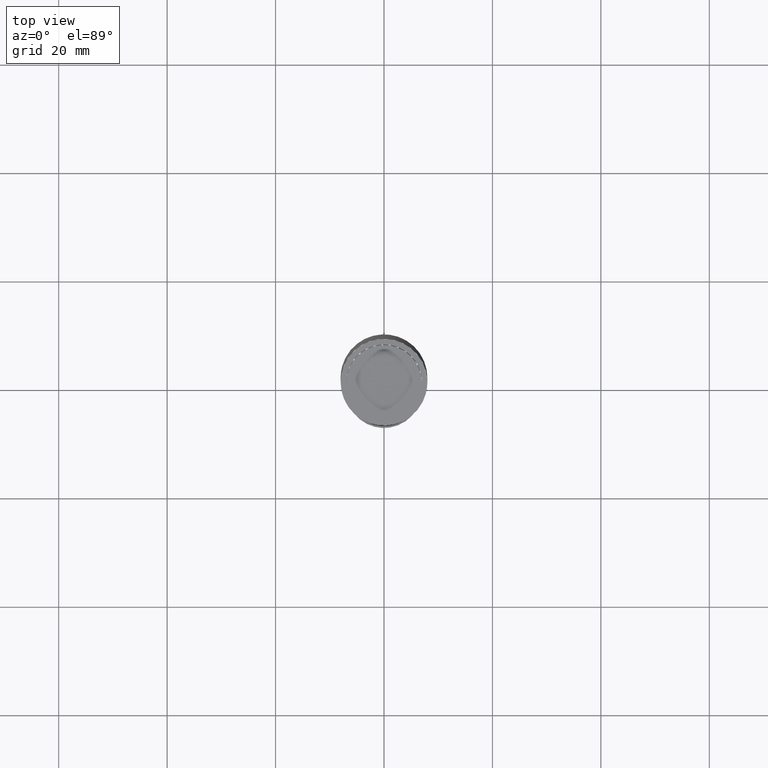
[diagram: clean part render]
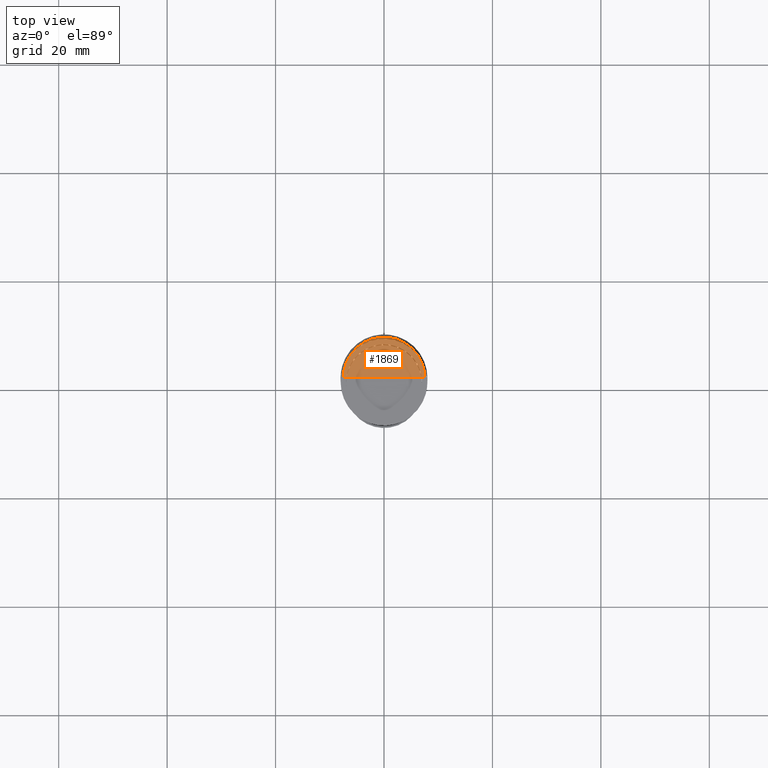
[diagram: same view with one face highlighted and labeled with its STEP entity id]
A machine part, top view. The second image highlights one B-rep face of the part: STEP entity #1869.
In plain terms, the highlighted face is a freeform B-spline surface patch.
Its self-contained STEP definition (entity closure, byte-faithful):
#1604=CARTESIAN_POINT('',(7.5,0.0,48.0));
#1605=CARTESIAN_POINT('',(7.5,7.5,48.0));
#1606=CARTESIAN_POINT('',(0.0,7.5,48.0));
#1607=CARTESIAN_POINT('',(-7.5,7.5,48.0));
#1608=CARTESIAN_POINT('',(-7.5,0.0,48.0));
#1609=CARTESIAN_POINT('',(0.0,0.0,48.0));
#1854=(
BOUNDED_SURFACE()
B_SPLINE_SURFACE(1,2,(
(#1604,#1605,#1606,#1607,#1608),
(#1609,#1609,#1609,#1609,#1609)
), .UNSPECIFIED.,.F.,.F.,.F.)
B_SPLINE_SURFACE_WITH_KNOTS((2,2),(3,2,3),(
0.0,1.0),(
0.0,0.5,1.0), .UNSPECIFIED.)
GEOMETRIC_REPRESENTATION_ITEM()
RATIONAL_B_SPLINE_SURFACE(((1.0,0.707106781187,1.0,0.707106781187,1.0),
(1.0,0.707106781187,1.0,0.707106781187,1.0)
))
REPRESENTATION_ITEM('')
SURFACE()
);
#1855=(
BOUNDED_CURVE()
B_SPLINE_CURVE(2,(#1608,#1607,#1606,#1605,#1604),.UNSPECIFIED.,.F.,.F.)
B_SPLINE_CURVE_WITH_KNOTS((3,2,3),
(0.0,0.5,1.0),.UNSPECIFIED.)
CURVE()
GEOMETRIC_REPRESENTATION_ITEM()
RATIONAL_B_SPLINE_CURVE((1.0,0.707106781187,1.0,0.707106781187,1.0))
REPRESENTATION_ITEM('')
);
#1856=(
BOUNDED_CURVE()
B_SPLINE_CURVE(1,(#1604,#1609),.UNSPECIFIED.,.F.,.F.)
B_SPLINE_CURVE_WITH_KNOTS((2,2),
(0.0,1.0),.UNSPECIFIED.)
CURVE()
GEOMETRIC_REPRESENTATION_ITEM()
RATIONAL_B_SPLINE_CURVE((1.0,1.0))
REPRESENTATION_ITEM('')
);
#1857=(
BOUNDED_CURVE()
B_SPLINE_CURVE(1,(#1609,#1608),.UNSPECIFIED.,.F.,.F.)
B_SPLINE_CURVE_WITH_KNOTS((2,2),
(0.0,1.0),.UNSPECIFIED.)
CURVE()
GEOMETRIC_REPRESENTATION_ITEM()
RATIONAL_B_SPLINE_CURVE((1.0,1.0))
REPRESENTATION_ITEM('')
);
#1858=VERTEX_POINT('',#1604);
#1859=VERTEX_POINT('',#1608);
#1860=VERTEX_POINT('',#1609);
#1861=EDGE_CURVE('',#1859,#1858,#1855,.T.);
#1862=EDGE_CURVE('',#1858,#1860,#1856,.T.);
#1863=EDGE_CURVE('',#1860,#1859,#1857,.T.);
#1864=ORIENTED_EDGE('',*,*,#1861,.T.);
#1865=ORIENTED_EDGE('',*,*,#1862,.T.);
#1866=ORIENTED_EDGE('',*,*,#1863,.T.);
#1867=EDGE_LOOP('',(#1864,#1865,#1866));
#1868=FACE_OUTER_BOUND('',#1867,.T.);
#1869=ADVANCED_FACE('',(#1868),#1854,.T.);